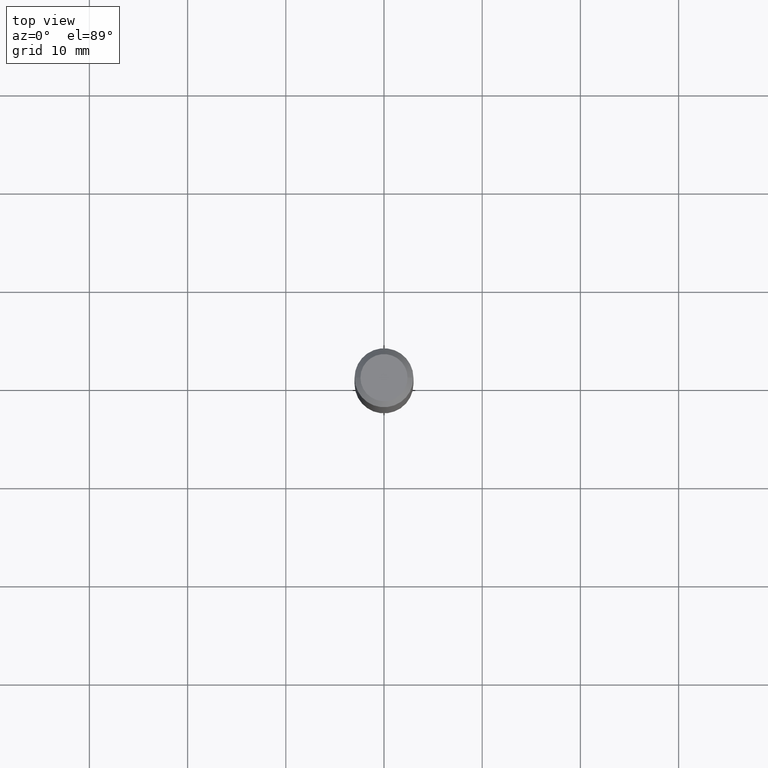
[diagram: clean part render]
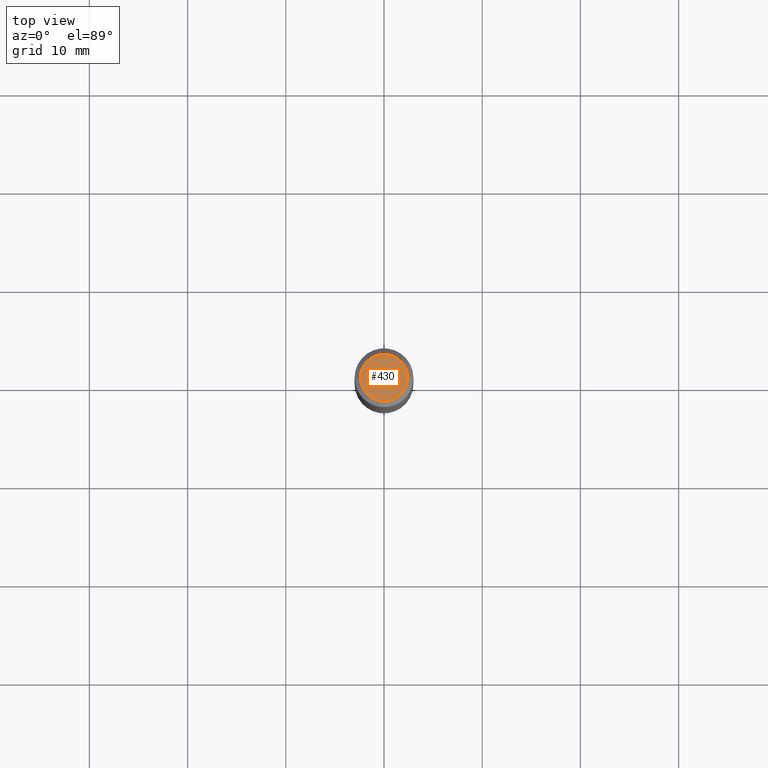
[diagram: same view with one face highlighted and labeled with its STEP entity id]
A machine part, top view. The second image highlights one B-rep face of the part: STEP entity #430.
In plain terms, the highlighted planar face has unit normal (0, -0, -1).
Its self-contained STEP definition (entity closure, byte-faithful):
#35 = CIRCLE ( 'NONE', #231, 0.09447999999999998066 ) ;
#53 = DIRECTION ( 'NONE',  ( -1.000000000000000000, 6.982962677686265922E-15, -4.876176775795935793E-29 ) ) ;
#69 = CARTESIAN_POINT ( 'NONE',  ( 4.716267017698007905E-46, -6.733579360998555036E-32, -1.928573779297252010E-17 ) ) ;
#99 = CARTESIAN_POINT ( 'NONE',  ( 2.358133508849003952E-46, -3.366789680499277518E-32, -9.642868896486260050E-18 ) ) ;
#120 = DIRECTION ( 'NONE',  ( 2.438088387897960049E-29, -3.491481338843145188E-15, -1.000000000000000000 ) ) ;
#139 = ORIENTED_EDGE ( 'NONE', *, *, #217, .T. ) ;
#144 = CARTESIAN_POINT ( 'NONE',  ( 0.09447999999999998066, -7.704367267948738690E-16, -1.928573779296752193E-17 ) ) ;
#145 = EDGE_CURVE ( 'NONE', #483, #332, #470, .T. ) ;
#152 = CARTESIAN_POINT ( 'NONE',  ( -0.09447999999999998066, 7.009847083995354710E-16, -1.928573779297727792E-17 ) ) ;
#166 = ORIENTED_EDGE ( 'NONE', *, *, #145, .T. ) ;
#183 = DIRECTION ( 'NONE',  ( -2.445468806185136597E-29, 3.491481338843145583E-15, 1.000000000000000000 ) ) ;
#197 = EDGE_LOOP ( 'NONE', ( #139, #166 ) ) ;
#217 = EDGE_CURVE ( 'NONE', #332, #483, #35, .T. ) ;
#231 = AXIS2_PLACEMENT_3D ( 'NONE', #69, #245, #479 ) ;
#245 = DIRECTION ( 'NONE',  ( -2.445468806185136597E-29, 3.491481338843145583E-15, 1.000000000000000000 ) ) ;
#326 = DIRECTION ( 'NONE',  ( 1.000000000000000000, -6.982962677686267499E-15, 4.875432709231658792E-29 ) ) ;
#332 = VERTEX_POINT ( 'NONE', #152 ) ;
#365 = CARTESIAN_POINT ( 'NONE',  ( 4.716267017698007905E-46, -6.733579360998555036E-32, -1.928573779297252010E-17 ) ) ;
#370 = FACE_OUTER_BOUND ( 'NONE', #197, .T. ) ;
#393 = PLANE ( 'NONE',  #471 ) ;
#423 = AXIS2_PLACEMENT_3D ( 'NONE', #365, #183, #326 ) ;
#430 = ADVANCED_FACE ( 'NONE', ( #370 ), #393, .F. ) ;
#470 = CIRCLE ( 'NONE', #423, 0.09447999999999998066 ) ;
#471 = AXIS2_PLACEMENT_3D ( 'NONE', #99, #120, #53 ) ;
#479 = DIRECTION ( 'NONE',  ( 1.000000000000000000, -6.982962677686267499E-15, 4.875432709231658792E-29 ) ) ;
#483 = VERTEX_POINT ( 'NONE', #144 ) ;